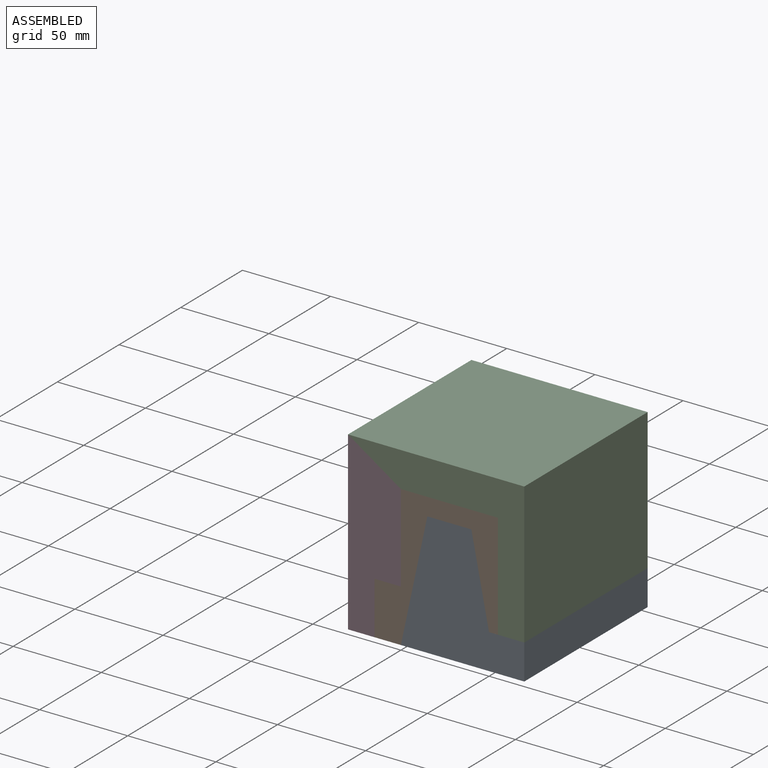
[diagram: assembled view]
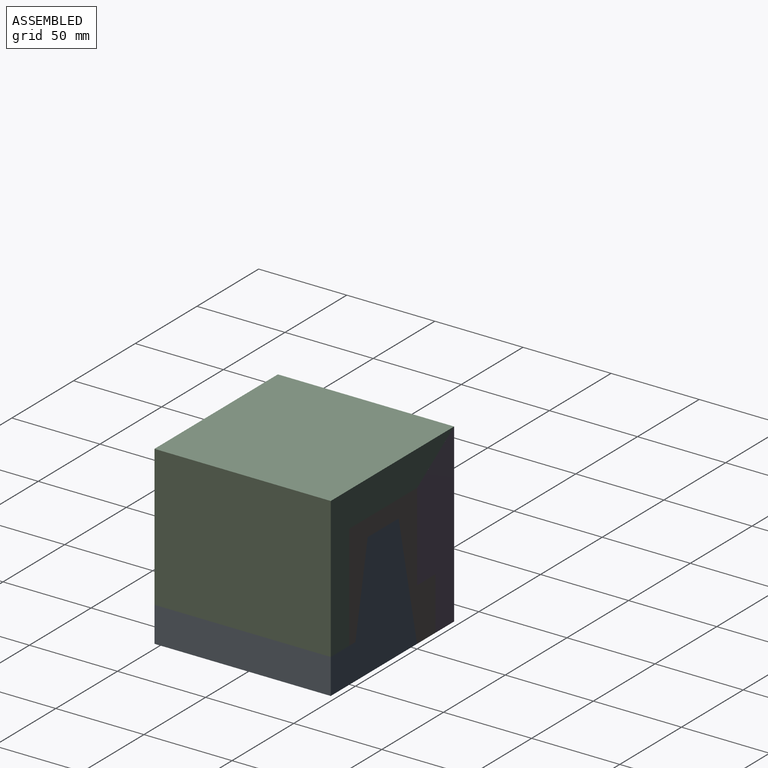
[diagram: assembled view, second angle]
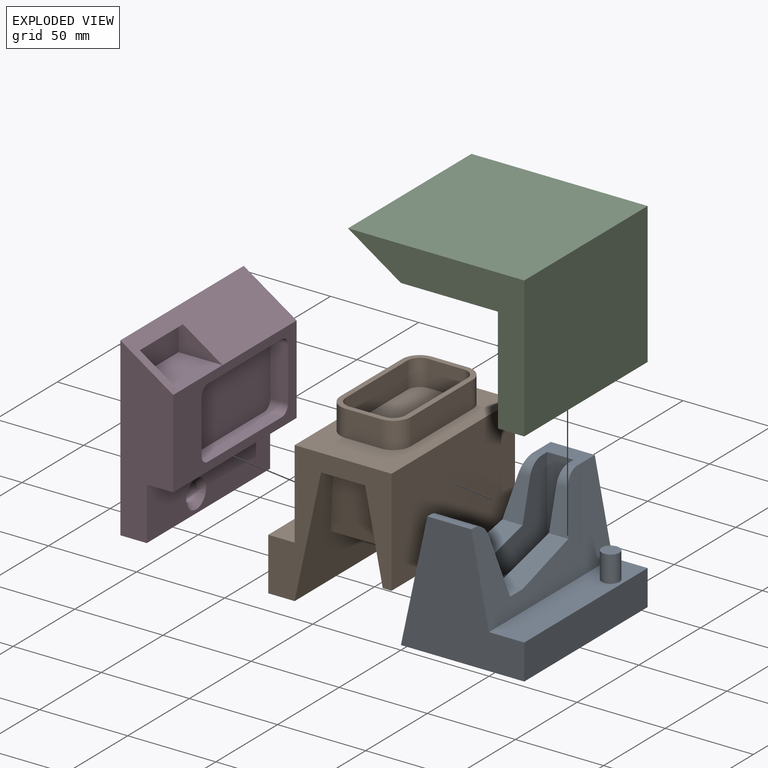
[diagram: exploded view]
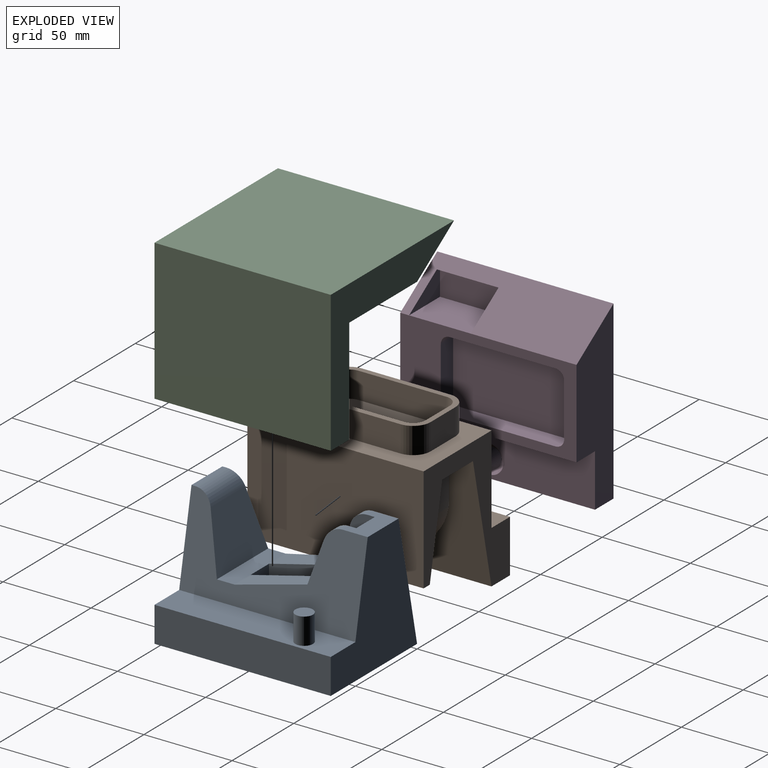
[diagram: exploded view, second angle]
ASSEMBLY  parts=4 mates=7
PART A: 25 faces, bbox 70x100x70 mm
  f0: plane 40x13mm, normal (0,-0.24,0.97), area 494.8mm2, adj f1,f8,f13,f19
  f1: plane 22.59x11mm, normal (0,-0.97,0.26), area 204.4mm2, adj f0,f2,f8,f19
  f2: cylinder r=10mm len=9.66mm, axis (1,0,0), area 72.3mm2, adj f1,f8,f9,f19
  f3: plane 25x2.19mm, normal (0,0,1), area 54.8mm2, adj f4,f8,f11,f16
  f4: plane 100x70mm, normal (-0.98,0,0.21), area 4966.6mm2, adj f3,f5,f9,f10,f11,f12,f13,f14
  f5: plane 100x70mm, normal (0,0,-1), area 7000mm2, adj f4,f6,f10,f11
  f6: plane 100x20mm, normal (1,0,0), area 2000mm2, adj f5,f7,f10,f11
  f7: plane 100x20mm, normal (0,0,1), area 1921.5mm2, adj f6,f8,f10,f11,f23
  f8: plane 100x50mm, normal (0.98,0,0.2), area 2912.9mm2, adj f0,f1,f2,f3,f7,f9,f10,f11
  f9: plane 25x14.29mm, normal (0,0,1), area 292.9mm2, adj f2,f4,f8,f10,f17,f19,f20,f21
  f10: plane 70x70mm, normal (0,1,0), area 3125mm2, adj f4,f5,f6,f7,f8,f9
  f11: plane 70x70mm, normal (0,-1,0), area 3125mm2, adj f3,f4,f5,f6,f7,f8
  f12: plane 41.57x32.43mm, normal (0,0.97,0.24), area 1165mm2, adj f4,f8,f13,f16
  f13: plane 41.57x10mm, normal (0,0,1), area 415.7mm2, adj f0,f4,f8,f12,f14,f18
  f14: plane 40x13.57mm, normal (0,-0.24,0.97), area 515.4mm2, adj f4,f13,f15,f20
  f15: plane 22.59x11.43mm, normal (0,-0.97,0.26), area 210.7mm2, adj f4,f14,f17,f20
  f16: cylinder r=10mm len=28.14mm, axis (1,0,0), area 346.2mm2, adj f3,f4,f8,f12
  f17: cylinder r=10mm len=9.66mm, axis (1,0,0), area 72.8mm2, adj f4,f9,f15,f20
  f18: plane 15x10mm, normal (0,1,0), area 150mm2, adj f13,f19,f20,f22
  f19: plane 60x50mm, normal (-1,0,0), area 1468.1mm2, adj f0,f1,f2,f9,f18,f21,f22
  f20: plane 60x50mm, normal (1,0,0), area 1468.1mm2, adj f9,f14,f15,f17,f18,f21,f22
  f21: plane 50x15mm, normal (0,-1,0), area 750mm2, adj f9,f19,f20,f22
  f22: plane 60x15mm, normal (0,0,1), area 900mm2, adj f18,f19,f20,f21
  f23: cylinder r=5mm len=15mm, axis (0,0,-1), area 471.2mm2, adj f7,f24
  f24: plane 10x10mm, normal (0,0,1), area 78.5mm2, adj f23
PART B: 42 faces, bbox 85x100x95 mm
  f0: plane 100x55mm, normal (0,0,-1), area 2785.8mm2, adj f5,f6,f9,f10,f24,f25,f26,f27
  f1: plane 30x11.43mm, normal (0,-0.97,0.26), area 255.1mm2, adj f2,f4,f14,f18
  f2: plane 25x21.96mm, normal (0,0,1), area 369.6mm2, adj f1,f4,f8,f10,f13,f16,f17,f18
  f3: plane 25x10mm, normal (0,0,1), area 250mm2, adj f4,f8,f9,f12
  f4: plane 100x70mm, normal (0.98,0,0.21), area 4990.2mm2, adj f1,f2,f3,f9,f10,f11,f12,f14
  f5: plane 100x50mm, normal (-1,0,0), area 5000mm2, adj f0,f9,f10,f19
  f6: plane 100x60mm, normal (1,0,0), area 6000mm2, adj f0,f7,f9,f10
  f7: plane 100x5mm, normal (0,0,1), area 500mm2, adj f6,f8,f9,f10
  f8: plane 100x50mm, normal (-0.98,0,0.2), area 2936.4mm2, adj f2,f3,f7,f9,f10,f11,f12,f13
  f9: plane 80x70mm, normal (0,1,0), area 2025mm2, adj f0,f3,f4,f5,f6,f7,f8,f19
  f10: plane 80x70mm, normal (0,-1,0), area 2025mm2, adj f0,f2,f4,f5,f6,f7,f8,f19
  f11: plane 41.57x10mm, normal (0,0,1), area 415.7mm2, adj f4,f8,f12,f14
  f12: plane 41.57x40mm, normal (0,0.97,0.24), area 1372.4mm2, adj f3,f4,f8,f11
  f13: plane 30x11mm, normal (0,-0.97,0.26), area 248.5mm2, adj f2,f8,f14,f17
  f14: plane 41.57x40mm, normal (0,-0.24,0.97), area 1107.9mm2, adj f1,f4,f8,f11,f13,f15,f17,f18
  f15: cylinder r=30mm len=53.68mm, axis (-1,0,0), area 1116.2mm2, adj f14,f16,f17,f18
  f16: plane 20x15mm, normal (0,-1,0), area 300mm2, adj f2,f15,f17,f18
  f17: plane 53.68x50mm, normal (1,0,0), area 1135.1mm2, adj f2,f13,f14,f15,f16
  f18: plane 53.68x50mm, normal (-1,0,0), area 1135.1mm2, adj f1,f2,f14,f15,f16
  f19: plane 100x15mm, normal (0,0,-1), area 1500mm2, adj f5,f9,f10,f21
  f20: plane 100x15mm, normal (0,0,1), area 1500mm2, adj f4,f9,f10,f21
  f21: plane 100x30mm, normal (-1,0,0), area 2921.5mm2, adj f9,f10,f19,f20,f22
  f22: cylinder r=5mm len=15mm, axis (1,0,0), area 471.2mm2, adj f21,f23
  f23: plane 10x10mm, normal (-1,0,0), area 78.5mm2, adj f22
  f24: plane 20x15mm, normal (0,-1,0), area 300mm2, adj f0,f28,f29,f32
  f25: plane 50x15mm, normal (-1,0,0), area 750mm2, adj f0,f28,f29,f30
  f26: plane 20x15mm, normal (0,1,0), area 300mm2, adj f0,f28,f30,f31
  f27: plane 50x15mm, normal (1,0,0), area 750mm2, adj f0,f28,f31,f32
  f28: plane 70x40mm, normal (0,0,-1), area 580.2mm2, adj f24,f25,f26,f27,f29,f30,f31,f32
  f29: cylinder r=10mm len=15mm, axis (0,0,1), area 235.6mm2, adj f0,f24,f25,f28
  f30: cylinder r=10mm len=15mm, axis (0,0,-1), area 235.6mm2, adj f0,f25,f26,f28
  f31: cylinder r=10mm len=15mm, axis (0,0,1), area 235.6mm2, adj f0,f26,f27,f28
  f32: cylinder r=10mm len=15mm, axis (0,0,-1), area 235.6mm2, adj f0,f24,f27,f28
  f33: cylinder r=7mm len=15mm, axis (0,0,-1), area 164.9mm2, adj f28,f34,f40,f41
  f34: plane 50x15mm, normal (-1,0,0), area 750mm2, adj f28,f33,f35,f41
  f35: cylinder r=7mm len=15mm, axis (0,0,-1), area 164.9mm2, adj f28,f34,f36,f41
  f36: plane 20x15mm, normal (0,1,0), area 300mm2, adj f28,f35,f37,f41
  f37: cylinder r=7mm len=15mm, axis (0,0,-1), area 164.9mm2, adj f28,f36,f38,f41
  f38: plane 50x15mm, normal (1,0,0), area 750mm2, adj f28,f37,f39,f41
  f39: cylinder r=7mm len=15mm, axis (0,0,-1), area 164.9mm2, adj f28,f38,f40,f41
  f40: plane 20x15mm, normal (0,-1,0), area 300mm2, adj f28,f33,f39,f41
  f41: plane 64x34mm, normal (0,0,-1), area 2133.9mm2, adj f33,f34,f35,f36,f37,f38,f39,f40
PART C: 22 faces, bbox 100x100x80 mm
  f0: plane 55x5mm, normal (0,0,1), area 275mm2, adj f2,f3,f7,f14
  f1: plane 55x55mm, normal (0,0,1), area 1225mm2, adj f2,f3,f8,f9,f10,f11,f12,f15
  f2: plane 100x30mm, normal (0.55,0,0.83), area 2523.9mm2, adj f0,f1,f6,f7,f8,f12,f13,f14
  f3: plane 100x60mm, normal (1,0,0), area 4200mm2, adj f0,f1,f4,f7,f8,f14,f15,f16
  f4: plane 100x15mm, normal (0,0,1), area 1421.5mm2, adj f3,f5,f7,f8,f18
  f5: plane 100x80mm, normal (-1,0,0), area 8000mm2, adj f4,f6,f7,f8
  f6: plane 100x100mm, normal (0,0,-1), area 10000mm2, adj f2,f5,f7,f8
  f7: plane 100x80mm, normal (0,-1,0), area 2600mm2, adj f0,f2,f3,f4,f5,f6
  f8: plane 100x80mm, normal (0,1,0), area 2600mm2, adj f1,f2,f3,f4,f5,f6
  f9: plane 45x15mm, normal (1,0,0), area 675mm2, adj f1,f10,f13,f15
  f10: plane 40x15mm, normal (0,-1,0), area 600mm2, adj f1,f9,f11,f13
  f11: plane 45x15mm, normal (-1,0,0), area 675mm2, adj f1,f10,f12,f13
  f12: plane 27.5x15mm, normal (0,-1,0), area 243.8mm2, adj f1,f2,f11,f13
  f13: plane 87.5x85mm, normal (0,0,1), area 5289.3mm2, adj f2,f9,f10,f11,f12,f14,f15,f17
  f14: plane 82.5x60mm, normal (0,1,0), area 1293.8mm2, adj f0,f2,f3,f13,f16,f20
  f15: plane 60x15mm, normal (0,-1,0), area 450mm2, adj f1,f3,f9,f13,f16,f21
  f16: plane 40x10mm, normal (0,0,-1), area 389.3mm2, adj f3,f14,f15,f17,f20,f21
  f17: plane 60x30mm, normal (1,0,0), area 1800mm2, adj f13,f16,f20,f21
  f18: cylinder r=5mm len=15mm, axis (0,0,1), area 471.2mm2, adj f4,f19
  f19: plane 10x10mm, normal (0,0,1), area 78.5mm2, adj f18
  f20: cylinder r=5mm len=60mm, axis (0,0,1), area 471.2mm2, adj f13,f14,f16,f17
  f21: cylinder r=5mm len=60mm, axis (0,0,1), area 471.2mm2, adj f13,f15,f16,f17
PART D: 24 faces, bbox 100x100x30 mm
  f0: plane 100x30mm, normal (0,-1,0), area 2250mm2, adj f1,f3,f4,f5,f6,f7
  f1: plane 100x50mm, normal (0,0,1), area 2221.5mm2, adj f0,f2,f5,f7,f11,f13,f14,f15
  f2: plane 100x30mm, normal (0,1,0), area 2250mm2, adj f1,f3,f4,f5,f6,f7
  f3: plane 100x15mm, normal (-1,0,0), area 1500mm2, adj f0,f2,f4,f6
  f4: plane 100x100mm, normal (0,0,-1), area 9921.5mm2, adj f0,f2,f3,f5,f22
  f5: plane 100x30mm, normal (0.83,0,0.55), area 2659.1mm2, adj f0,f1,f2,f4,f8,f9,f10
  f6: plane 100x30mm, normal (0,0,1), area 2798.9mm2, adj f0,f2,f3,f7,f23
  f7: plane 100x15mm, normal (-1,0,0), area 1500mm2, adj f0,f1,f2,f6
  f8: plane 25x15mm, normal (0,1,0), area 206.3mm2, adj f5,f9,f11,f12
  f9: plane 35x2.5mm, normal (-1,0,0), area 87.5mm2, adj f5,f8,f10,f12
  f10: plane 25x15mm, normal (0,-1,0), area 206.3mm2, adj f5,f9,f11,f12
  f11: plane 35x25mm, normal (1,0,0), area 875mm2, adj f1,f8,f10,f12
  f12: plane 35x15mm, normal (0,0,1), area 525mm2, adj f8,f9,f10,f11
  f13: plane 60x10mm, normal (1,0,0), area 600mm2, adj f1,f17,f18,f21
  f14: plane 30x10mm, normal (0,1,0), area 300mm2, adj f1,f17,f18,f19
  f15: plane 60x10mm, normal (-1,0,0), area 600mm2, adj f1,f17,f19,f20
  f16: plane 30x10mm, normal (0,-1,0), area 300mm2, adj f1,f17,f20,f21
  f17: plane 70x40mm, normal (0,0,1), area 2778.5mm2, adj f13,f14,f15,f16,f18,f19,f20,f21
  f18: cylinder r=5mm len=10mm, axis (0,0,-1), area 78.5mm2, adj f1,f13,f14,f17
  f19: cylinder r=5mm len=10mm, axis (0,0,1), area 78.5mm2, adj f1,f14,f15,f17
  f20: cylinder r=5mm len=10mm, axis (0,0,-1), area 78.5mm2, adj f1,f15,f16,f17
  f21: cylinder r=5mm len=10mm, axis (0,0,1), area 78.5mm2, adj f1,f13,f16,f17
  f22: cylinder r=5mm len=12mm, axis (0,0,1), area 377mm2, adj f4,f23
  f23: cone r=5mm half-angle=45deg, axis (0,0,1), area 173.3mm2, adj f6,f22
PLACE A at identity fixed
PLACE B rot(axis=(1,0,0),180deg) t=(0,100,80)mm
PLACE C rot(axis=(0,1,0),180deg) t=(70,100,100)mm
PLACE D rot(axis=(-0.71,0,-0.71),180deg) t=(-30,100,0)mm
MATE slider D.f22 <-> B.f22  axis (-1,0,0) through (-30,40,10)mm
MATE planar B.f5 <-> D.f1  axis (-1,0,0) through (0,50,55)mm
MATE planar B.f4 <-> A.f4  axis (0.98,0,-0.21) through (0,50,0)mm
MATE slider C.f18 <-> A.f23  axis (0,0,-1) through (63,80,20)mm
MATE planar A.f7 <-> C.f4  axis (0,0,1) through (50,50,20)mm
MATE planar B.f2 <-> A.f9  axis (0,0,-1) through (27.5,91.45,70)mm
MATE planar B.f9 <-> A.f11  axis (0,-1,0) through (15,0,70)mm
